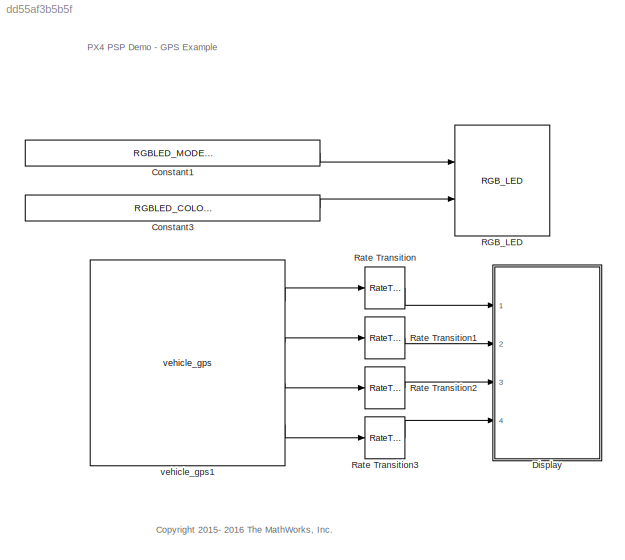
MODEL slx_dd55af3b5b5f
KIND model
CONFIG AbsTol = auto
CONFIG EnableMultiTasking = on
CONFIG FixedStep = auto
CONFIG MaxStep = auto
CONFIG MinStep = auto
CONFIG PostLoadFcn = Ts = 1/250;
CONFIG RelTol = 1e-3
CONFIG SampleTimeConstraint = Unconstrained
CONFIG Solver = ode3
CONFIG SolverName = ode3
CONFIG StartTime = 0.0
CONFIG StopTime = inf
BLOCK [Constant] Constant1
  OutDataTypeStr = Enum: RGBLED_MODE_ENUM
  SampleTime = 1
  Value = RGBLED_MODE_ENUM.SL_MODE_BREATHE
BLOCK [Constant] Constant3
  OutDataTypeStr = Enum: RGBLED_COLOR_ENUM
  SampleTime = 1
  Value = RGBLED_COLOR_ENUM.SL_COLOR_GREEN
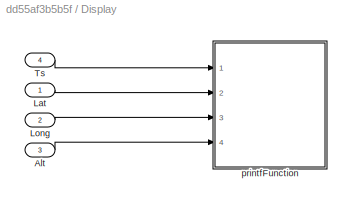
BLOCK [SubSystem] Display
  Ports = [4]
  RequestExecContextInheritance = off
  SystemSampleTime = 1
  TreatAsAtomicUnit = on
  Variant = off
BLOCK [Inport] Display/Alt
  IconDisplay = Port number
  Port = 3
BLOCK [Inport] Display/Lat
  IconDisplay = Port number
BLOCK [Inport] Display/Long
  IconDisplay = Port number
  Port = 2
BLOCK [Inport] Display/Ts
  IconDisplay = Port number
  Port = 4
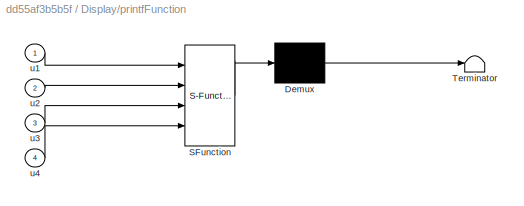
BLOCK [SubSystem] Display/printfFunction
  ErrorFcn = Stateflow.Translate.translate
  PermitHierarchicalResolution = ExplicitOnly
  Ports = [4]
  RequestExecContextInheritance = off
  SFBlockType = MATLAB Function
  TreatAsAtomicUnit = on
  Variant = off
BLOCK [Demux] Display/printfFunction/ Demux 
  Outputs = 1
  Ports = [1, 1]
BLOCK [S-Function] Display/printfFunction/ SFunction 
  EnableBusSupport = off
  FunctionName = sf_sfun
  PortCounts = [4 1]
  Ports = [4, 1]
  SFcnIsStateOwnerBlock = off
  SFunctionDeploymentMode = off
  Tag = Stateflow S-Function px4demo_gps 2
BLOCK [Terminator] Display/printfFunction/ Terminator 
BLOCK [Inport] Display/printfFunction/u1
  IconDisplay = Port number
BLOCK [Inport] Display/printfFunction/u2
  IconDisplay = Port number
  Port = 2
BLOCK [Inport] Display/printfFunction/u3
  IconDisplay = Port number
  Port = 3
BLOCK [Inport] Display/printfFunction/u4
  IconDisplay = Port number
  Port = 4
BLOCK [Reference] RGB_LED  REF=pixhawk_slib_sensors_actuators/RGB_LED
  Ports = [2]
  SourceBlock = pixhawk_slib_sensors_actuators/RGB_LED
  SourceProductName = Pixhawk Target Blocks
  SourceType = PX4_RGBLED - controls the mode and color of the Pixhawk RGB LED
BLOCK [RateTransition] Rate Transition
BLOCK [RateTransition] Rate Transition1
BLOCK [RateTransition] Rate Transition2
BLOCK [RateTransition] Rate Transition3
BLOCK [Reference] vehicle_gps1  REF=pixhawk_slib_sensors_actuators/vehicle_gps
  Ports = [0, 4]
  SourceBlock = pixhawk_slib_sensors_actuators/vehicle_gps
  SourceProductName = Pixhawk Target Blocks
  SourceType = PX4_Vehicle_GPS
ANNOTATION (root): PX4 PSP Demo - GPS Example
ANNOTATION (root): <copyright redacted>
LINE Constant1:1 -> RGB_LED:1
LINE Constant3:1 -> RGB_LED:2
LINE Display/Alt:1 -> Display/printfFunction:4
LINE Display/Lat:1 -> Display/printfFunction:2
LINE Display/Long:1 -> Display/printfFunction:3
LINE Display/Ts:1 -> Display/printfFunction:1
LINE Rate Transition1:1 -> Display:2
LINE Rate Transition2:1 -> Display:3
LINE Rate Transition3:1 -> Display:4
LINE Rate Transition:1 -> Display:1
LINE vehicle_gps1:1 -> Rate Transition:1
LINE vehicle_gps1:2 -> Rate Transition1:1
LINE vehicle_gps1:3 -> Rate Transition2:1
LINE vehicle_gps1:4 -> Rate Transition3:1
CHART Display/printfFunction states=1 transitions=1
  STATE_LABEL 'eML_blk_kernel()'
  STATE_LABEL "SCRIPT:\nfunction fcn(u1, u2, u3,u4)\n%#codegen\n\nif strcmp(coder.target, 'rtw') == true\n    coder.ceval('printf',['UTC Time GPS->TS: %f ', uint8(10) uint8(0)],   u1);\n    coder.ceval('printf',['GPS->LAT: %d ', uint8(10) uint8(0)], int32(u2));\n    coder.ceval('printf',['GPS->LON: %d ', uint8(10) uint8(0)], int32(u3));\n    coder.ceval('printf',['GPS->ALT: %d ', uint8(10) uint8(0)], int32(u4));\n\nend"
